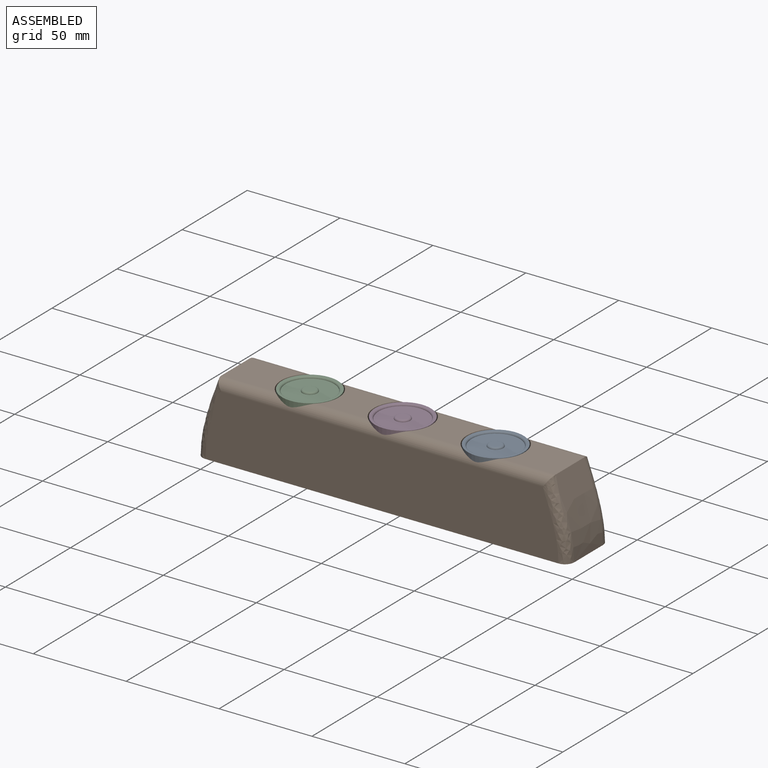
[diagram: assembled view]
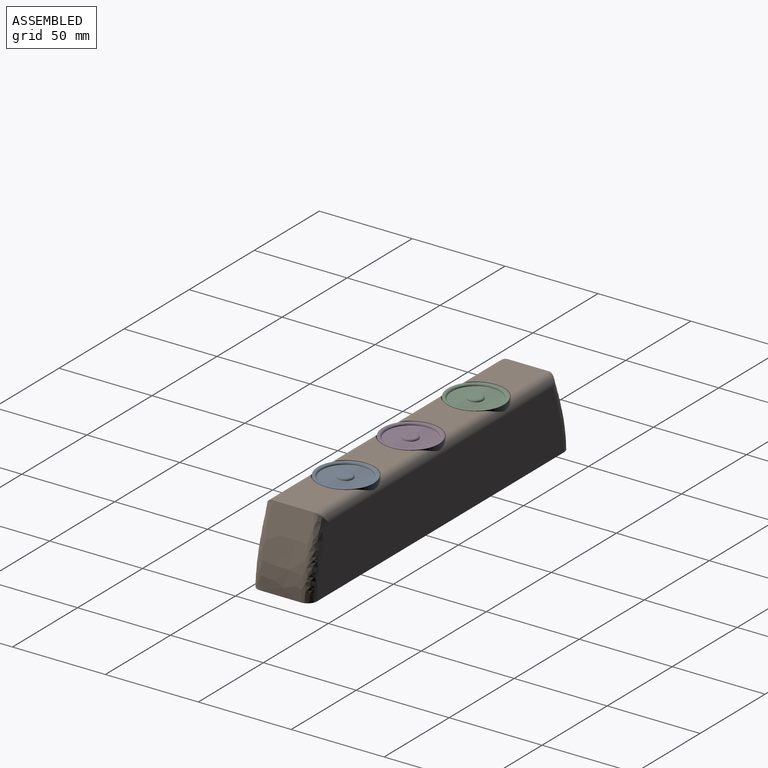
[diagram: assembled view, second angle]
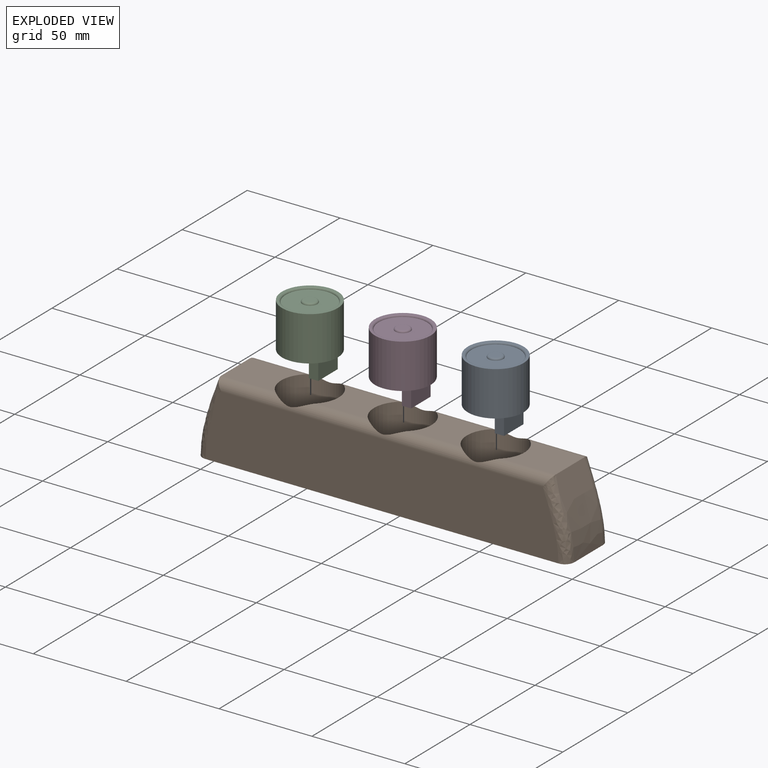
[diagram: exploded view]
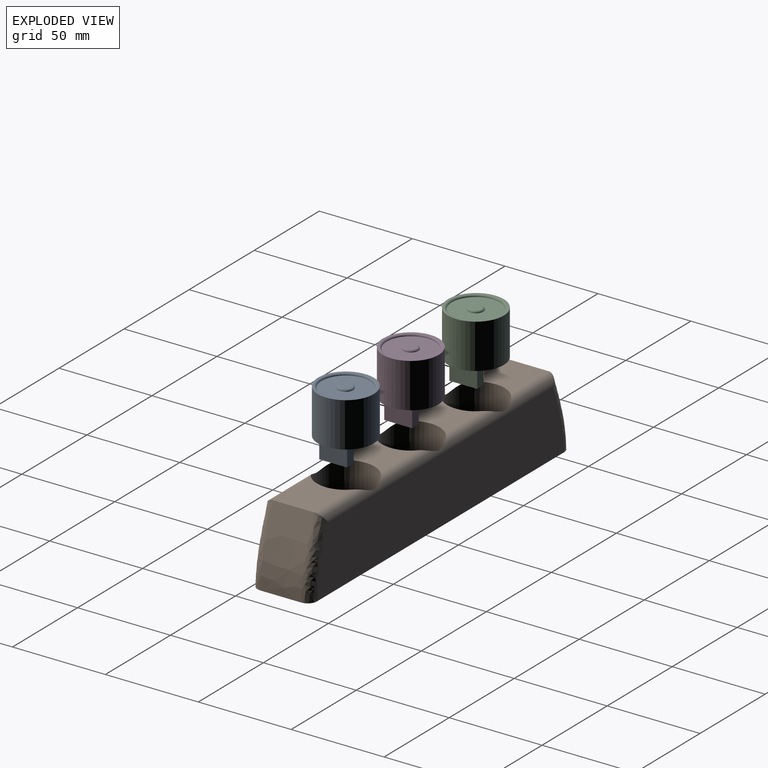
[diagram: exploded view, second angle]
ASSEMBLY  parts=4 mates=3
PART A: 17 faces, bbox 30.3x30.3x34 mm
  f0: plane 15x5mm, normal (0,0,-1), area 39mm2, adj f8,f9,f10,f11,f12,f13,f14,f15
  f1: cylinder r=15mm len=30mm, axis (0,0,-1), area 2261.9mm2, adj f2,f3
  f2: plane 30x30mm, normal (0,0,1), area 91.1mm2, adj f1,f7
  f3: plane 30x30mm, normal (0,0,-1), area 631.9mm2, adj f1,f8,f9,f10,f11
  f4: plane 26x26mm, normal (0,0,1), area 480.7mm2, adj f6,f7
  f5: plane 6x6mm, normal (0,0,1), area 28.3mm2, adj f6
  f6: torus R=3mm, axis (0,0,1), area 35.9mm2, adj f4,f5
  f7: torus R=14mm, axis (0,0,1), area 131.9mm2, adj f2,f4
  f8: plane 15x10mm, normal (1,0,0), area 150mm2, adj f0,f3,f9,f11
  f9: plane 10x5mm, normal (0,-1,0), area 50mm2, adj f0,f3,f8,f10
  f10: plane 15x10mm, normal (-1,0,0), area 150mm2, adj f0,f3,f9,f11
  f11: plane 10x5mm, normal (0,1,0), area 50mm2, adj f0,f3,f8,f10
  f12: plane 7x3mm, normal (0,-1,0), area 21mm2, adj f0,f13,f15,f16
  f13: plane 12x7mm, normal (-1,0,0), area 84mm2, adj f0,f12,f14,f16
  f14: plane 7x3mm, normal (0,1,0), area 21mm2, adj f0,f13,f15,f16
  f15: plane 12x7mm, normal (1,0,0), area 84mm2, adj f0,f12,f14,f16
  f16: plane 12x3mm, normal (0,0,-1), area 36mm2, adj f12,f13,f14,f15
PART B: 18 faces, bbox 200.2x42.5x32.2 mm
  f0: plane 29.08x22mm, normal (0,-1,0), area 570.3mm2, adj f7,f11,f13,f17
  f1: plane 28.16x22mm, normal (0,-1,0), area 480.6mm2, adj f11,f13,f15,f16
  f2: plane 28.16x22mm, normal (0,-1,0), area 480.6mm2, adj f11,f13,f15,f17
  f3: plane 200.16x32.16mm, normal (0,1,0), area 4114.2mm2, adj f5,f6,f7,f8,f9,f10,f12,f14
  f4: plane 29.08x22mm, normal (0,-1,0), area 570.3mm2, adj f5,f11,f13,f16
  f5: bspline ~40x32mm, area 912.2mm2, adj f3,f4,f10,f12
  f6: plane 190x35.02mm, normal (0,0,-1), area 6429.3mm2, adj f3,f12,f13,f14
  f7: bspline ~40x32mm, area 912.2mm2, adj f0,f3,f9,f14
  f8: plane 190x35.02mm, normal (0,0,1), area 6429.3mm2, adj f3,f9,f10,f11
  f9: bspline ~42.34x15.35mm, area 306.9mm2, adj f3,f7,f8,f11
  f10: bspline ~42.34x15.35mm, area 306.9mm2, adj f3,f5,f8,f11
  f11: cylinder r=5mm len=180mm, axis (-1,0,0), area 1203.1mm2, adj f0,f1,f2,f4,f8,f9,f10,f15
  f12: bspline ~42.34x15.35mm, area 306.9mm2, adj f3,f5,f6,f13
  f13: cylinder r=5mm len=180mm, axis (1,0,0), area 1153.3mm2, adj f0,f1,f2,f4,f6,f12,f14,f15
  f14: bspline ~42.34x15.35mm, area 306.9mm2, adj f3,f6,f7,f13
  f15: cylinder r=15.5mm len=40mm, axis (0,1,0), area 3861.4mm2, adj f1,f2,f3,f11,f13
  f16: cylinder r=15.5mm len=40mm, axis (0,1,0), area 3861.4mm2, adj f1,f3,f4,f11,f13
  f17: cylinder r=15.5mm len=40mm, axis (0,1,0), area 3861.4mm2, adj f0,f2,f3,f11,f13
PART C: same geometry as A
PART D: same geometry as A
PLACE A t=(-55.51,-29.49,-50.55)mm
PLACE B rot(axis=(-1,0,0),90deg) t=(-17.07,-62.82,-66.55)mm
PLACE C t=(-155.51,-29.49,-50.55)mm
PLACE D t=(-105.51,-29.49,-50.55)mm
MATE fastened B.f16 <-> C.f6  axis (0,0,-1) through (-155.51,-29.49,-26.55)mm
MATE fastened B.f17 <-> A.f6  axis (0,0,-1) through (-55.51,-29.49,-26.55)mm
MATE fastened B.f15 <-> D.f6  axis (0,0,-1) through (-105.51,-29.49,-26.55)mm
